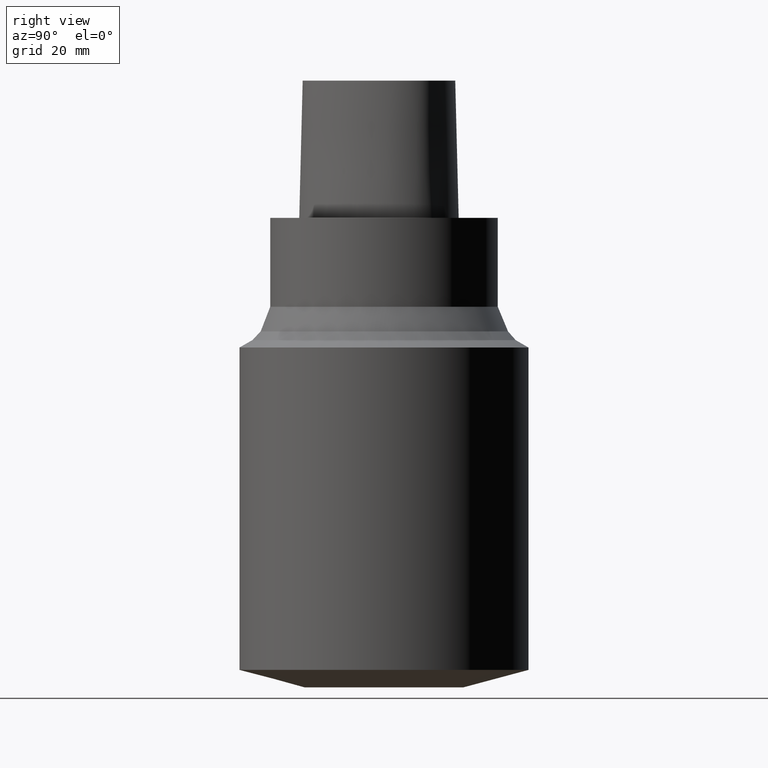
[diagram: clean part render]
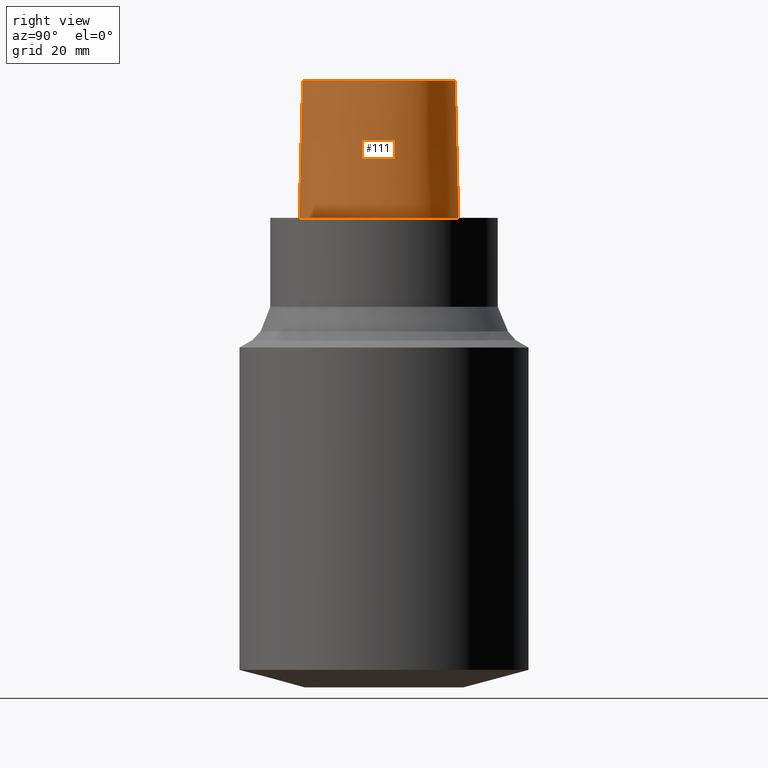
[diagram: same view with one face highlighted and labeled with its STEP entity id]
A machine part, right view. The second image highlights one B-rep face of the part: STEP entity #111.
In plain terms, the highlighted face is a freeform B-spline surface patch.
Its self-contained STEP definition (entity closure, byte-faithful):
#61=EDGE_CURVE('Unnamed[1]',#151,#152,#153,.T.);
#63=EDGE_CURVE('Unnamed[1]',#152,#155,#156,.T.);
#65=EDGE_CURVE('Unnamed[1]',#151,#158,#159,.T.);
#91=EDGE_CURVE('Unnamed[1]',#155,#158,#194,.T.);
#111=ADVANCED_FACE('Unnamed[1]',(#223),#224,.T.);
#151=VERTEX_POINT('',#332);
#152=VERTEX_POINT('',#333);
#153=B_SPLINE_CURVE_WITH_KNOTS('',3,(#334,#335,#336,#337,#338,#339,#340,#341,#342,#343,#344,#345,#346,#347,#348,#349),.UNSPECIFIED.,.F.,.F.,(4,1,1,1,1,1,1,1,1,1,1,1,1,4),(6.61513393087476,6.99917207152274,7.48193246986995,7.96289324787093,8.45540287038584,9.10291653679981,9.67129810936083,10.1618749681153,10.6358867802489,11.1080734988593,11.6043706019633,12.09451993853,12.6985979284494,13.2302678617486),.UNSPECIFIED.);
#155=VERTEX_POINT('',#352);
#156=LINE('',#353,#354);
#158=VERTEX_POINT('',#357);
#159=LINE('',#358,#359);
#194=B_SPLINE_CURVE_WITH_KNOTS('',3,(#436,#437,#438,#439,#440,#441,#442,#443,#444,#445,#446,#447,#448,#449,#450,#451,#452),.UNSPECIFIED.,.F.,.F.,(4,1,1,1,1,1,1,1,1,1,1,1,1,1,4),(-13.2302678617486,-12.816821991069,-12.4033761203893,-11.9899302497097,-11.57648437903,-11.1630385083504,-10.9563155730106,-10.7495926376707,-10.3361467669911,-9.92270089631145,-9.09580915495216,-8.26891741359287,-7.44202567223358,-7.02857980155394,-6.6151339308743),.UNSPECIFIED.);
#223=FACE_OUTER_BOUND('',#489,.T.);
#224=B_SPLINE_SURFACE_WITH_KNOTS('',3,3,((#490,#491,#492,#493),(#494,#495,#496,#497),(#498,#499,#500,#501),(#502,#503,#504,#505),(#506,#507,#508,#509),(#510,#511,#512,#513),(#514,#515,#516,#517),(#518,#519,#520,#521),(#522,#523,#524,#525),(#526,#527,#528,#529),(#530,#531,#532,#533),(#534,#535,#536,#537),(#538,#539,#540,#541),(#542,#543,#544,#545),(#546,#547,#548,#549),(#550,#551,#552,#553),(#554,#555,#556,#557)),.UNSPECIFIED.,.F.,.F.,.F.,(4,1,1,1,1,1,1,1,1,1,1,1,1,1,4),(4,4),(-13.2302678617486,-12.816821991069,-12.4033761203893,-11.9899302497097,-11.57648437903,-11.1630385083504,-10.9563155730106,-10.7495926376707,-10.3361467669911,-9.92270089631145,-9.09580915495216,-8.26891741359287,-7.44202567223358,-7.02857980155394,-6.6151339308743),(-3.8,0.0),.UNSPECIFIED.);
#332=CARTESIAN_POINT('',(0.038736923393866,-22.5191997536361,38.0));
#333=CARTESIAN_POINT('',(-0.001218547003662,19.7276821925089,38.0));
#334=CARTESIAN_POINT('',(0.038736923394311,-22.519199753636,38.0));
#335=CARTESIAN_POINT('',(1.31742058183662,-22.512662269405,38.0));
#336=CARTESIAN_POINT('',(4.2093773447498,-21.9116226439989,38.0));
#337=CARTESIAN_POINT('',(8.20895504542113,-19.7798683845067,38.0));
#338=CARTESIAN_POINT('',(11.9784633234593,-16.681663904162,38.0));
#339=CARTESIAN_POINT('',(15.5308821579362,-12.5807487594113,38.0));
#340=CARTESIAN_POINT('',(18.4566248438667,-7.64932246015528,38.0));
#341=CARTESIAN_POINT('',(20.4036090752029,-2.27012499825289,38.0));
#342=CARTESIAN_POINT('',(21.2357187429189,2.79891401173156,38.0));
#343=CARTESIAN_POINT('',(21.0811206267748,7.62543090736657,38.0));
#344=CARTESIAN_POINT('',(19.3383577336563,12.2772250726194,38.0));
#345=CARTESIAN_POINT('',(15.5796322014404,15.5799672120682,38.0));
#346=CARTESIAN_POINT('',(10.8392956074438,17.9834601687347,38.0));
#347=CARTESIAN_POINT('',(5.56068045850571,19.4586143858472,38.0));
#348=CARTESIAN_POINT('',(1.77223893711014,19.6418877095654,38.0));
#349=CARTESIAN_POINT('',(-0.001218367817519,19.7276822012873,38.0));
#352=CARTESIAN_POINT('',(0.044682985379347,20.6765087343109,1.61778115328528E-031));
#353=CARTESIAN_POINT('',(-0.001218547003662,19.7276821925089,38.0));
#354=VECTOR('',#591,38.0118715503078);
#357=CARTESIAN_POINT('',(0.04359356758149,-23.4691235068931,7.78075697532443E-032));
#358=CARTESIAN_POINT('',(0.038736923393866,-22.5191997536361,38.0));
#359=VECTOR('',#592,38.0118715498723);
#436=CARTESIAN_POINT('',(0.044682985379347,20.6765087343109,1.61778115328528E-031));
#437=CARTESIAN_POINT('',(1.42379272427753,20.6097915814392,8.62816615085482E-032));
#438=CARTESIAN_POINT('',(4.2230955003445,20.4837538303966,1.4791141972894E-031));
#439=CARTESIAN_POINT('',(8.47220762821777,19.6890432607088,9.86076131526265E-032));
#440=CARTESIAN_POINT('',(12.5141247708253,18.2434968480404,0.0));
#441=CARTESIAN_POINT('',(16.3038624872874,16.1734192182143,1.97215226305253E-031));
#442=CARTESIAN_POINT('',(19.1446913988473,13.7036723639434,-1.97215226305253E-031));
#443=CARTESIAN_POINT('',(20.7319894342149,11.1014620996188,0.0));
#444=CARTESIAN_POINT('',(21.7831756505763,8.28099229708081,-1.97215226305253E-031));
#445=CARTESIAN_POINT('',(22.2258240701438,4.60865440596506,0.0));
#446=CARTESIAN_POINT('',(21.7436130080666,-1.11326526354485,0.0));
#447=CARTESIAN_POINT('',(19.5519487660502,-7.95432366164584,0.0));
#448=CARTESIAN_POINT('',(14.9574167123838,-15.2089785567293,0.0));
#449=CARTESIAN_POINT('',(9.66840283021945,-20.0827414369705,-9.86076131526265E-032));
#450=CARTESIAN_POINT('',(4.51628650521788,-22.7946374572188,-9.86076131526265E-032));
#451=CARTESIAN_POINT('',(1.55867251738073,-23.4612972770043,-1.23259516440783E-032));
#452=CARTESIAN_POINT('',(0.04359356758149,-23.4691235068931,7.78075697532443E-032));
#489=EDGE_LOOP('',(#658,#659,#660,#661));
#490=CARTESIAN_POINT('',(-0.001218367817519,19.7276822012873,38.0));
#491=CARTESIAN_POINT('',(0.014082083248157,20.0439577123075,25.3333333333066));
#492=CARTESIAN_POINT('',(0.029382534313671,20.3602332232908,12.6666666666934));
#493=CARTESIAN_POINT('',(0.044682985379347,20.6765087343109,1.61778115328528E-031));
#494=CARTESIAN_POINT('',(1.37788651195108,19.6609652834875,38.0));
#495=CARTESIAN_POINT('',(1.3931885827258,19.9772407169847,25.3333333333066));
#496=CARTESIAN_POINT('',(1.40849065356095,20.2935162254648,12.6666666666934));
#497=CARTESIAN_POINT('',(1.42379272427753,20.6097915814392,8.62816615085482E-032));
#498=CARTESIAN_POINT('',(4.135446440878,19.5347778787784,38.0));
#499=CARTESIAN_POINT('',(4.16466278851883,19.8511031866125,25.3333333333066));
#500=CARTESIAN_POINT('',(4.1938791526746,20.1674284644204,12.6666666666934));
#501=CARTESIAN_POINT('',(4.2230955003445,20.4837538303966,1.4791141972894E-031));
#502=CARTESIAN_POINT('',(8.213607363795,18.7706026638736,38.0));
#503=CARTESIAN_POINT('',(8.29980745008421,19.0767495109635,25.3333333333066));
#504=CARTESIAN_POINT('',(8.38600751285747,19.3828964329996,12.6666666666934));
#505=CARTESIAN_POINT('',(8.47220762821777,19.6890432607088,9.86076131526265E-032));
#506=CARTESIAN_POINT('',(12.1316338645671,17.3698624840857,38.0));
#507=CARTESIAN_POINT('',(12.2591308270381,17.6610739397708,25.3333333333066));
#508=CARTESIAN_POINT('',(12.3866278083543,17.9522853923553,12.6666666666934));
#509=CARTESIAN_POINT('',(12.5141247708253,18.2434968480404,0.0));
#510=CARTESIAN_POINT('',(15.7706546153679,15.3789501349612,38.0));
#511=CARTESIAN_POINT('',(15.9483905900895,15.6437731794811,25.3333333333066));
#512=CARTESIAN_POINT('',(16.1261265513272,15.9085961736944,12.6666666666934));
#513=CARTESIAN_POINT('',(16.3038624872874,16.1734192182143,1.97215226305253E-031));
#514=CARTESIAN_POINT('',(18.4265894256284,13.0570022172893,38.0));
#515=CARTESIAN_POINT('',(18.6659567517146,13.2725589420689,25.3333333333066));
#516=CARTESIAN_POINT('',(18.9053240921419,13.4881156488541,12.6666666666934));
#517=CARTESIAN_POINT('',(19.1446913988473,13.7036723639434,-1.97215226305253E-031));
#518=CARTESIAN_POINT('',(19.8679958653038,10.6923771981998,38.0));
#519=CARTESIAN_POINT('',(20.1559937048299,10.8287388264873,25.3333333333066));
#520=CARTESIAN_POINT('',(20.4439915656177,10.965100461641,12.6666666666934));
#521=CARTESIAN_POINT('',(20.7319894342149,11.1014620996188,0.0));
#522=CARTESIAN_POINT('',(20.8470867582337,8.07149548576131,38.0));
#523=CARTESIAN_POINT('',(21.1591164072431,8.14132775555392,25.3333333333066));
#524=CARTESIAN_POINT('',(21.4711459821861,8.21116003697855,12.6666666666934));
#525=CARTESIAN_POINT('',(21.7831756505763,8.28099229708081,-1.97215226305253E-031));
#526=CARTESIAN_POINT('',(21.2693244256982,4.61157245650171,38.0));
#527=CARTESIAN_POINT('',(21.5881576801997,4.6105997689982,25.3333333333066));
#528=CARTESIAN_POINT('',(21.9069908544037,4.60962709346857,12.6666666666934));
#529=CARTESIAN_POINT('',(22.2258240701438,4.60865440596506,0.0));
#530=CARTESIAN_POINT('',(20.8071610855575,-0.912828649855193,38.0));
#531=CARTESIAN_POINT('',(21.119311671178,-0.979640884839481,25.3333333333066));
#532=CARTESIAN_POINT('',(21.4314624224461,-1.04645306732201,12.6666666666934));
#533=CARTESIAN_POINT('',(21.7436130080666,-1.11326526354485,0.0));
#534=CARTESIAN_POINT('',(18.6841935581315,-7.54428794252837,38.0));
#535=CARTESIAN_POINT('',(18.9734452551861,-7.6809665891091,25.3333333333066));
#536=CARTESIAN_POINT('',(19.2626970689956,-7.81764505382656,12.6666666666934));
#537=CARTESIAN_POINT('',(19.5519487660502,-7.95432366164584,0.0));
#538=CARTESIAN_POINT('',(14.2175552814,-14.5971504342323,38.0));
#539=CARTESIAN_POINT('',(14.4641757465198,-14.8010930946929,25.3333333333066));
#540=CARTESIAN_POINT('',(14.710796247264,-15.0050359737917,12.6666666666934));
#541=CARTESIAN_POINT('',(14.9574167123838,-15.2089785567293,0.0));
#542=CARTESIAN_POINT('',(9.0844808732933,-19.3179298129689,38.0));
#543=CARTESIAN_POINT('',(9.27912152349017,-19.572866915557,25.3333333333066));
#544=CARTESIAN_POINT('',(9.47376218971294,-19.827804295621,12.6666666666934));
#545=CARTESIAN_POINT('',(9.66840283021945,-20.0827414369705,-9.86076131526265E-032));
#546=CARTESIAN_POINT('',(4.17112919194182,-21.8987568152736,38.0));
#547=CARTESIAN_POINT('',(4.28618163483998,-22.1973837173649,25.3333333333066));
#548=CARTESIAN_POINT('',(4.40123406239433,-22.4960105163661,12.6666666666934));
#549=CARTESIAN_POINT('',(4.51628650521788,-22.7946374572188,-9.86076131526265E-032));
#550=CARTESIAN_POINT('',(1.41533654381097,-22.5120888467812,38.0));
#551=CARTESIAN_POINT('',(1.46311520162011,-22.8284916374445,25.3333333333066));
#552=CARTESIAN_POINT('',(1.51089385942236,-23.144894486341,12.6666666666934));
#553=CARTESIAN_POINT('',(1.55867251738073,-23.4612972770043,-1.23259516440783E-032));
#554=CARTESIAN_POINT('',(0.038736923393866,-22.5191997536361,38.0));
#555=CARTESIAN_POINT('',(0.04035580478973,-22.8358410047159,25.3333333333066));
#556=CARTESIAN_POINT('',(0.041974686185626,-23.1524822558133,12.6666666666934));
#557=CARTESIAN_POINT('',(0.04359356758149,-23.4691235068931,7.78075697532443E-032));
#591=DIRECTION('',(0.001207557810519,0.024961321374199,-0.999687688350411));
#592=DIRECTION('',(0.000127766510556,-0.024990186342461,-0.999687688361864));
#658=ORIENTED_EDGE('',*,*,#91,.F.);
#659=ORIENTED_EDGE('',*,*,#63,.F.);
#660=ORIENTED_EDGE('',*,*,#61,.F.);
#661=ORIENTED_EDGE('',*,*,#65,.T.);